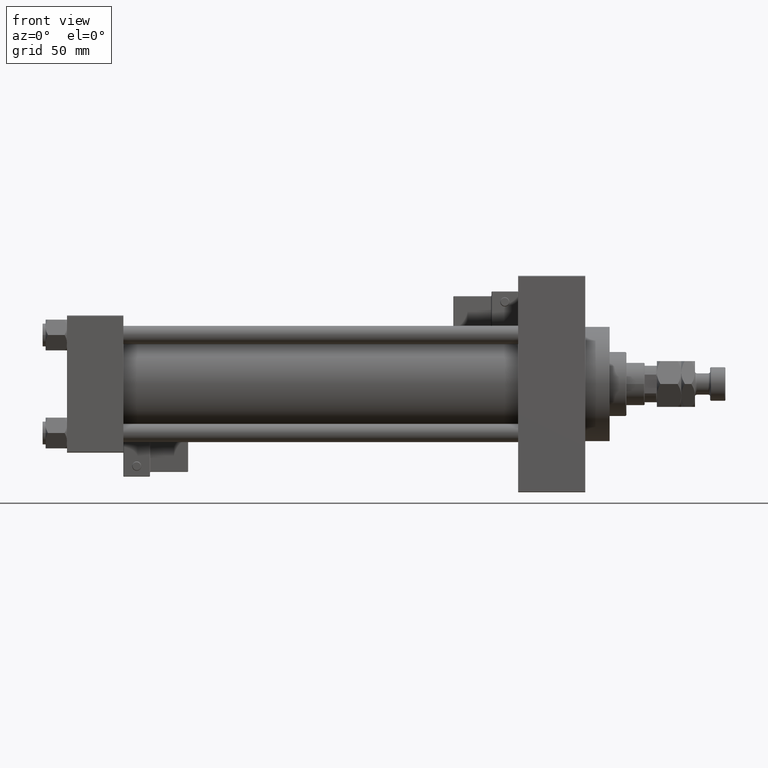
[diagram: clean part render]
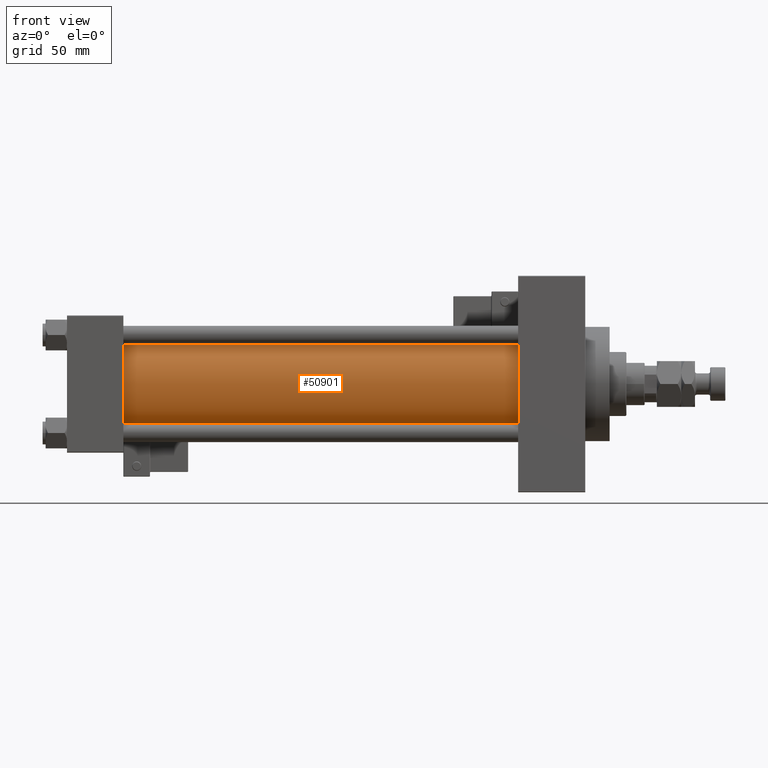
[diagram: same view with one face highlighted and labeled with its STEP entity id]
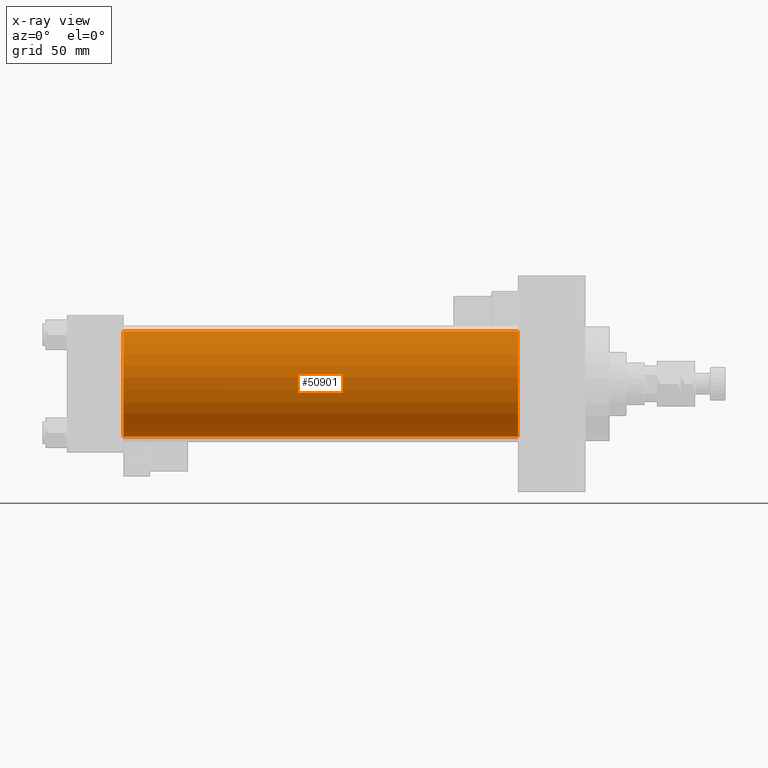
[diagram: x-ray of the same camera — body ghosted, the highlighted face saturated]
A machine part, front view. The second image highlights one B-rep face of the part: STEP entity #50901.
The next image is the same camera in x-ray: the body ghosted, the highlighted face saturated — about 0% of this face is hidden behind the body in this view.
In plain terms, the highlighted cylindrical surface (partial cylindrical patch) has radius 34.5 mm, axis along (-1, -0, -0).
Its self-contained STEP definition (entity closure, byte-faithful):
#1321 = DIRECTION ( 'NONE',  ( -1.000000000000000000, -0.000000000000000000, -0.000000000000000000 ) ) ;
#3295 = VERTEX_POINT ( 'NONE', #42458 ) ;
#4233 = ORIENTED_EDGE ( 'NONE', *, *, #48786, .T. ) ;
#4616 = VECTOR ( 'NONE', #35359, 1000.000000000000000 ) ;
#5499 = AXIS2_PLACEMENT_3D ( 'NONE', #27084, #47792, #35933 ) ;
#6104 = CARTESIAN_POINT ( 'NONE',  ( 36.99999999999997868, 1.622946243093158675E-15, -34.50000000000000000 ) ) ;
#6385 = CIRCLE ( 'NONE', #5499, 34.50000000000000000 ) ;
#12134 = DIRECTION ( 'NONE',  ( 1.000000000000000000, -0.000000000000000000, 0.000000000000000000 ) ) ;
#14091 = VERTEX_POINT ( 'NONE', #37022 ) ;
#15125 = VERTEX_POINT ( 'NONE', #47855 ) ;
#18993 = LINE ( 'NONE', #43722, #28402 ) ;
#19535 = CARTESIAN_POINT ( 'NONE',  ( 296.0000000000000000, -2.602085213965210642E-15, 34.50000000000000000 ) ) ;
#21885 = ORIENTED_EDGE ( 'NONE', *, *, #34749, .F. ) ;
#26025 = DIRECTION ( 'NONE',  ( -1.000000000000000000, -0.000000000000000000, -0.000000000000000000 ) ) ;
#26604 = VERTEX_POINT ( 'NONE', #6104 ) ;
#27084 = CARTESIAN_POINT ( 'NONE',  ( 296.0000000000000000, -2.602085213965210642E-15, 0.000000000000000000 ) ) ;
#28130 = ORIENTED_EDGE ( 'NONE', *, *, #36618, .T. ) ;
#28402 = VECTOR ( 'NONE', #1321, 1000.000000000000000 ) ;
#31109 = CYLINDRICAL_SURFACE ( 'NONE', #46629, 34.50000000000000000 ) ;
#31190 = CIRCLE ( 'NONE', #45784, 34.50000000000000000 ) ;
#34342 = FACE_OUTER_BOUND ( 'NONE', #37995, .T. ) ;
#34749 = EDGE_CURVE ( 'NONE', #14091, #3295, #6385, .T. ) ;
#35359 = DIRECTION ( 'NONE',  ( -1.000000000000000000, -0.000000000000000000, -0.000000000000000000 ) ) ;
#35933 = DIRECTION ( 'NONE',  ( 0.000000000000000000, 0.000000000000000000, -1.000000000000000000 ) ) ;
#36589 = CARTESIAN_POINT ( 'NONE',  ( 36.99999999999997868, -2.602085213965210642E-15, 0.000000000000000000 ) ) ;
#36618 = EDGE_CURVE ( 'NONE', #14091, #15125, #39965, .T. ) ;
#37022 = CARTESIAN_POINT ( 'NONE',  ( 296.0000000000000000, -2.602085213965210642E-15, 34.50000000000000000 ) ) ;
#37995 = EDGE_LOOP ( 'NONE', ( #44501, #21885, #28130, #4233 ) ) ;
#38933 = DIRECTION ( 'NONE',  ( 0.000000000000000000, 0.000000000000000000, 1.000000000000000000 ) ) ;
#39965 = LINE ( 'NONE', #19535, #4616 ) ;
#42458 = CARTESIAN_POINT ( 'NONE',  ( 296.0000000000000000, 1.622946243093158675E-15, -34.50000000000000000 ) ) ;
#42470 = EDGE_CURVE ( 'NONE', #3295, #26604, #18993, .T. ) ;
#42693 = CARTESIAN_POINT ( 'NONE',  ( 296.0000000000000000, -2.602085213965210642E-15, 0.000000000000000000 ) ) ;
#43722 = CARTESIAN_POINT ( 'NONE',  ( 296.0000000000000000, 1.622946243093158675E-15, -34.50000000000000000 ) ) ;
#44501 = ORIENTED_EDGE ( 'NONE', *, *, #42470, .F. ) ;
#45784 = AXIS2_PLACEMENT_3D ( 'NONE', #36589, #12134, #53008 ) ;
#46629 = AXIS2_PLACEMENT_3D ( 'NONE', #42693, #26025, #38933 ) ;
#47792 = DIRECTION ( 'NONE',  ( 1.000000000000000000, 0.000000000000000000, 0.000000000000000000 ) ) ;
#47855 = CARTESIAN_POINT ( 'NONE',  ( 36.99999999999997868, -2.602085213965210642E-15, 34.50000000000000000 ) ) ;
#48786 = EDGE_CURVE ( 'NONE', #15125, #26604, #31190, .T. ) ;
#50901 = ADVANCED_FACE ( 'NONE', ( #34342 ), #31109, .T. ) ;
#53008 = DIRECTION ( 'NONE',  ( 0.000000000000000000, 0.000000000000000000, 1.000000000000000000 ) ) ;